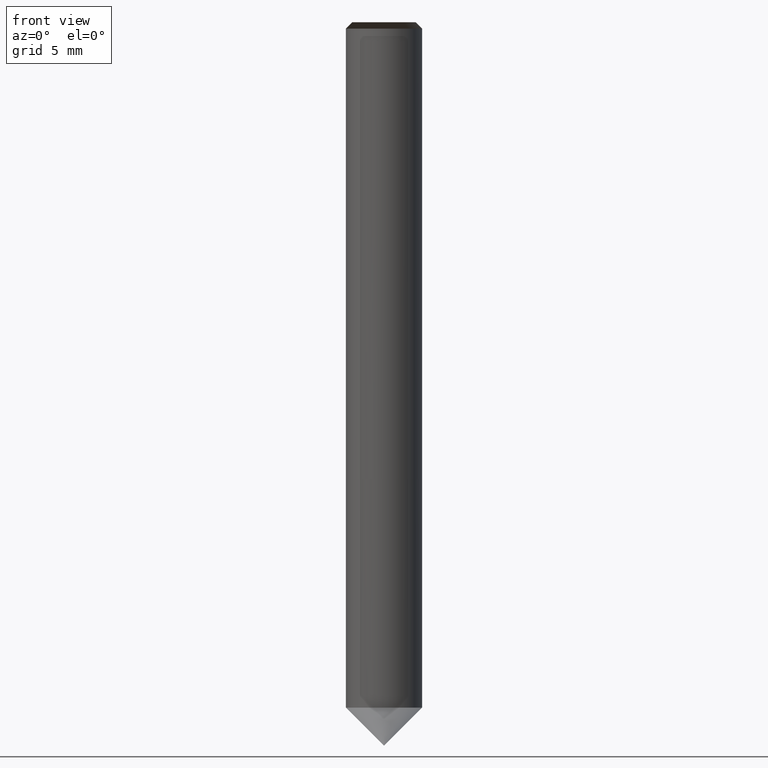
[diagram: clean part render]
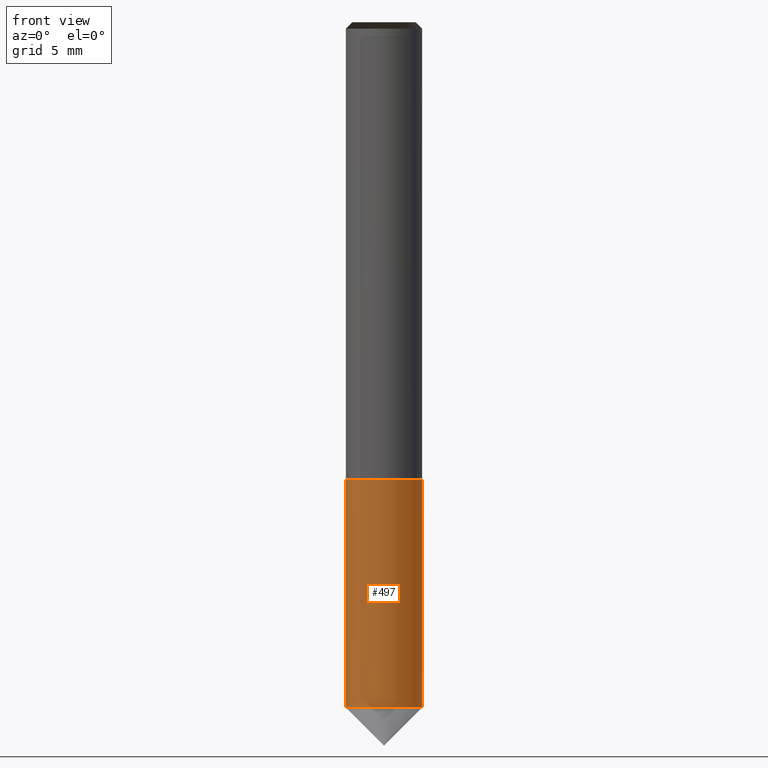
[diagram: same view with one face highlighted and labeled with its STEP entity id]
A machine part, front view. The second image highlights one B-rep face of the part: STEP entity #497.
In plain terms, the highlighted face is a freeform B-spline surface patch.
Its self-contained STEP definition (entity closure, byte-faithful):
#261=CARTESIAN_POINT('',(3.0,0.0,-18.0));
#265=CARTESIAN_POINT('',(-3.0,0.0,-18.0));
#267=CARTESIAN_POINT('',(-3.0,-3.0,-18.0));
#268=CARTESIAN_POINT('',(0.0,-3.0,-18.0));
#269=CARTESIAN_POINT('',(3.0,-3.0,-18.0));
#270=CARTESIAN_POINT('',(3.0,0.0,0.0));
#274=CARTESIAN_POINT('',(-3.0,0.0,0.0));
#286=CARTESIAN_POINT('',(-3.0,-3.0,0.0));
#287=CARTESIAN_POINT('',(0.0,-3.0,0.0));
#288=CARTESIAN_POINT('',(3.0,-3.0,0.0));
#478=(
BOUNDED_SURFACE()
B_SPLINE_SURFACE(1,2,(
(#265,#267,#268,#269,#261),
(#274,#286,#287,#288,#270)
), .UNSPECIFIED.,.F.,.F.,.F.)
B_SPLINE_SURFACE_WITH_KNOTS((2,2),(3,2,3),(
0.0,1.0),(
0.0,0.5,1.0), .UNSPECIFIED.)
GEOMETRIC_REPRESENTATION_ITEM()
RATIONAL_B_SPLINE_SURFACE(((1.0,0.707106781187,1.0,0.707106781187,1.0),
(1.0,0.707106781187,1.0,0.707106781187,1.0)
))
REPRESENTATION_ITEM('')
SURFACE()
);
#479=(
BOUNDED_CURVE()
B_SPLINE_CURVE(1,(#274,#265),.UNSPECIFIED.,.F.,.F.)
B_SPLINE_CURVE_WITH_KNOTS((2,2),
(0.0,1.0),.UNSPECIFIED.)
CURVE()
GEOMETRIC_REPRESENTATION_ITEM()
RATIONAL_B_SPLINE_CURVE((1.0,1.0))
REPRESENTATION_ITEM('')
);
#480=(
BOUNDED_CURVE()
B_SPLINE_CURVE(2,(#265,#267,#268,#269,#261),.UNSPECIFIED.,.F.,.F.)
B_SPLINE_CURVE_WITH_KNOTS((3,2,3),
(0.0,0.5,1.0),.UNSPECIFIED.)
CURVE()
GEOMETRIC_REPRESENTATION_ITEM()
RATIONAL_B_SPLINE_CURVE((1.0,0.707106781187,1.0,0.707106781187,1.0))
REPRESENTATION_ITEM('')
);
#481=(
BOUNDED_CURVE()
B_SPLINE_CURVE(1,(#261,#270),.UNSPECIFIED.,.F.,.F.)
B_SPLINE_CURVE_WITH_KNOTS((2,2),
(0.0,1.0),.UNSPECIFIED.)
CURVE()
GEOMETRIC_REPRESENTATION_ITEM()
RATIONAL_B_SPLINE_CURVE((1.0,1.0))
REPRESENTATION_ITEM('')
);
#482=(
BOUNDED_CURVE()
B_SPLINE_CURVE(2,(#270,#288,#287,#286,#274),.UNSPECIFIED.,.F.,.F.)
B_SPLINE_CURVE_WITH_KNOTS((3,2,3),
(0.0,0.5,1.0),.UNSPECIFIED.)
CURVE()
GEOMETRIC_REPRESENTATION_ITEM()
RATIONAL_B_SPLINE_CURVE((1.0,0.707106781187,1.0,0.707106781187,1.0))
REPRESENTATION_ITEM('')
);
#483=VERTEX_POINT('',#261);
#484=VERTEX_POINT('',#265);
#485=VERTEX_POINT('',#270);
#486=VERTEX_POINT('',#274);
#487=EDGE_CURVE('',#486,#484,#479,.T.);
#488=EDGE_CURVE('',#484,#483,#480,.T.);
#489=EDGE_CURVE('',#483,#485,#481,.T.);
#490=EDGE_CURVE('',#485,#486,#482,.T.);
#491=ORIENTED_EDGE('',*,*,#487,.T.);
#492=ORIENTED_EDGE('',*,*,#488,.T.);
#493=ORIENTED_EDGE('',*,*,#489,.T.);
#494=ORIENTED_EDGE('',*,*,#490,.T.);
#495=EDGE_LOOP('',(#491,#492,#493,#494));
#496=FACE_OUTER_BOUND('',#495,.T.);
#497=ADVANCED_FACE('',(#496),#478,.T.);